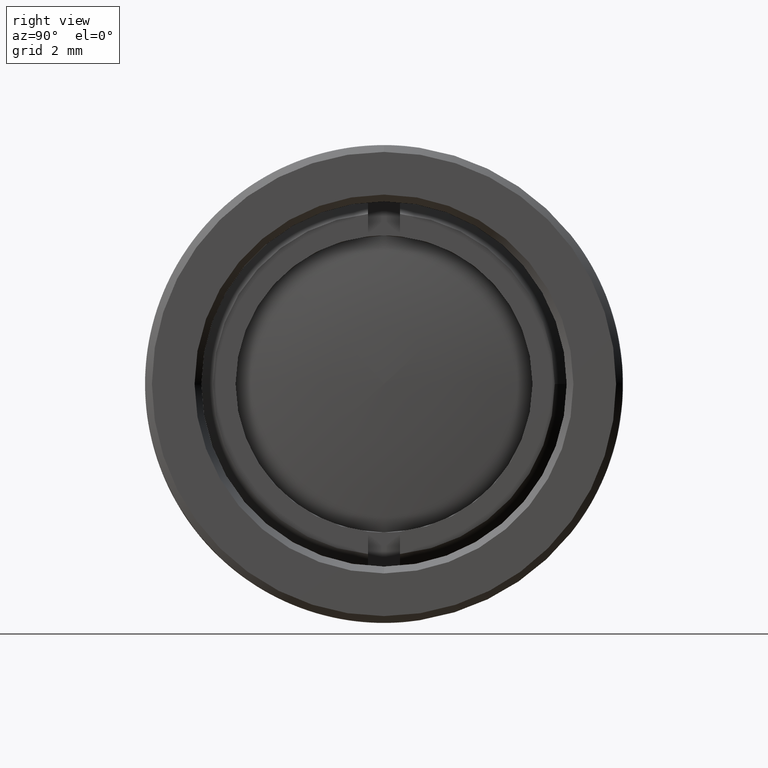
[diagram: clean part render]
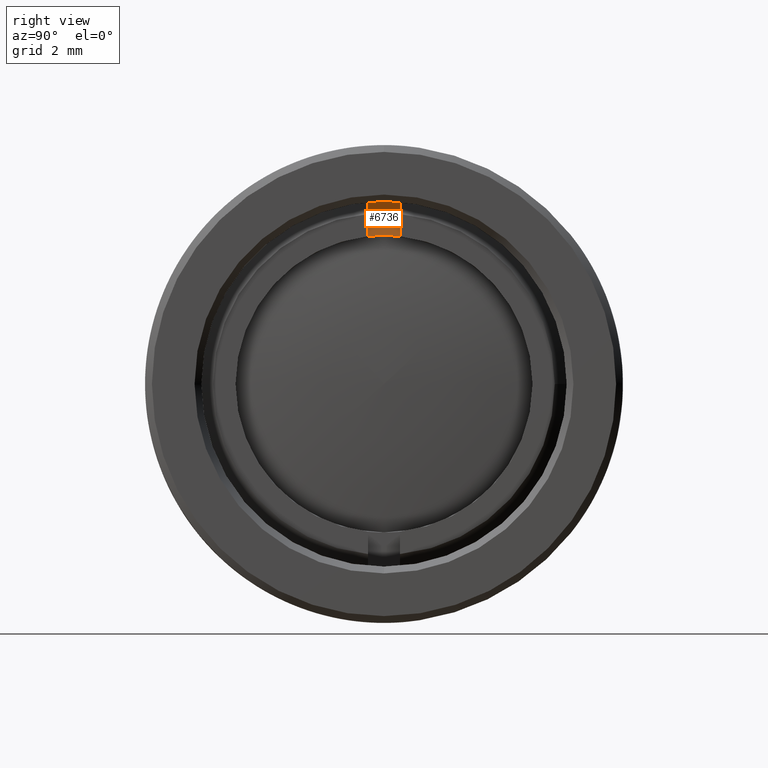
[diagram: same view with one face highlighted and labeled with its STEP entity id]
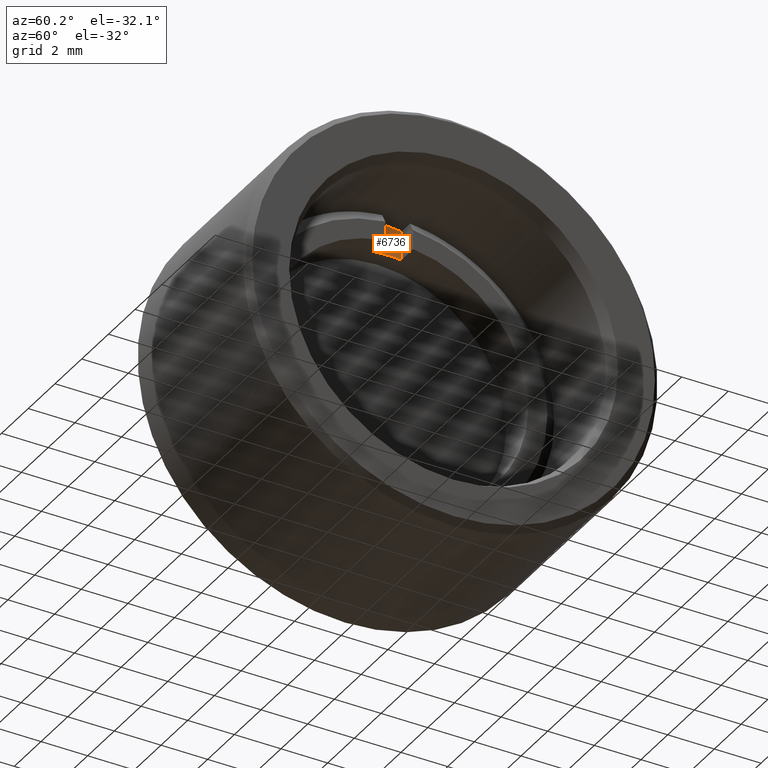
[diagram: same view with one face highlighted and labeled with its STEP entity id]
A machine part, right view. The second image highlights one B-rep face of the part: STEP entity #6736.
A second angle (auxiliary view) of the same face is appended — the face is thin or edge-on in the first view.
In plain terms, the highlighted planar face has unit normal (1, -0, -0).
Its self-contained STEP definition (entity closure, byte-faithful):
#934 = CARTESIAN_POINT ( 'NONE',  ( 5.458119933267195900, -0.5969000000000125300, 5.492159014449603300 ) ) ;
#2171 = DIRECTION ( 'NONE',  ( 1.860420394511408100E-017, -2.923928386435623900E-016, 1.000000000000000000 ) ) ;
#2228 = AXIS2_PLACEMENT_3D ( 'NONE', #3195, #11116, #4357 ) ;
#2250 = DIRECTION ( 'NONE',  ( 1.000000000000000000, -1.814574754612633700E-016, -1.860420394511413300E-017 ) ) ;
#2548 = VECTOR ( 'NONE', #2171, 1000.000000000000000 ) ;
#2699 = VECTOR ( 'NONE', #13021, 1000.000000000000000 ) ;
#2803 = ORIENTED_EDGE ( 'NONE', *, *, #4290, .T. ) ;
#2896 = ORIENTED_EDGE ( 'NONE', *, *, #10748, .T. ) ;
#3195 = CARTESIAN_POINT ( 'NONE',  ( 5.458119933267195900, -1.461940458157490900E-014, 2.431086578986632500E-015 ) ) ;
#3715 = ORIENTED_EDGE ( 'NONE', *, *, #12508, .T. ) ;
#4290 = EDGE_CURVE ( 'NONE', #8745, #13493, #5726, .T. ) ;
#4347 = CARTESIAN_POINT ( 'NONE',  ( 5.458119933267195900, -1.461940458157490900E-014, 2.431086578986632500E-015 ) ) ;
#4357 = DIRECTION ( 'NONE',  ( -1.570027582565668500E-016, -1.000000000000000000, -1.224646799147353000E-016 ) ) ;
#4898 = AXIS2_PLACEMENT_3D ( 'NONE', #4347, #12256, #5462 ) ;
#5085 = AXIS2_PLACEMENT_3D ( 'NONE', #9041, #2250, #10178 ) ;
#5227 = VERTEX_POINT ( 'NONE', #13120 ) ;
#5462 = DIRECTION ( 'NONE',  ( -1.814574754612633700E-016, -1.000000000000000000, -1.224646799147353000E-016 ) ) ;
#5726 = LINE ( 'NONE', #6198, #2699 ) ;
#6198 = CARTESIAN_POINT ( 'NONE',  ( 5.458119933267195900, -0.5969000000000154200, 6.768230244310551300 ) ) ;
#6736 = ADVANCED_FACE ( 'NONE', ( #14433 ), #11107, .T. ) ;
#7406 = CARTESIAN_POINT ( 'NONE',  ( 5.458119933267195900, -0.5969000000000154200, 6.768230244310551300 ) ) ;
#8102 = EDGE_CURVE ( 'NONE', #8389, #8745, #13694, .T. ) ;
#8389 = VERTEX_POINT ( 'NONE', #14298 ) ;
#8745 = VERTEX_POINT ( 'NONE', #7406 ) ;
#9041 = CARTESIAN_POINT ( 'NONE',  ( 5.458119933267195900, -1.461940458157490900E-014, 2.431086578986632500E-015 ) ) ;
#9165 = ORIENTED_EDGE ( 'NONE', *, *, #8102, .T. ) ;
#10030 = CIRCLE ( 'NONE', #2228, 5.524499999999999700 ) ;
#10178 = DIRECTION ( 'NONE',  ( -1.276564483020683500E-016, -1.000000000000000000, -1.224646799147352700E-016 ) ) ;
#10748 = EDGE_CURVE ( 'NONE', #13493, #5227, #10030, .T. ) ;
#11107 = PLANE ( 'NONE',  #4898 ) ;
#11116 = DIRECTION ( 'NONE',  ( -1.000000000000000000, 1.814574754612633700E-016, 1.860420394511413300E-017 ) ) ;
#11237 = CARTESIAN_POINT ( 'NONE',  ( 5.458119933267195900, 0.5968999999999844400, 6.768230244310551300 ) ) ;
#11245 = EDGE_LOOP ( 'NONE', ( #9165, #2803, #2896, #3715 ) ) ;
#11594 = LINE ( 'NONE', #11237, #2548 ) ;
#12256 = DIRECTION ( 'NONE',  ( 1.000000000000000000, -1.814574754612633700E-016, -1.860420394511413300E-017 ) ) ;
#12508 = EDGE_CURVE ( 'NONE', #5227, #8389, #11594, .T. ) ;
#13021 = DIRECTION ( 'NONE',  ( -1.860420394511414200E-017, -4.746347881409169500E-017, -1.000000000000000000 ) ) ;
#13120 = CARTESIAN_POINT ( 'NONE',  ( 5.458119933267195900, 0.5968999999999848900, 5.492159014449602400 ) ) ;
#13493 = VERTEX_POINT ( 'NONE', #934 ) ;
#13694 = CIRCLE ( 'NONE', #5085, 6.794500000000002000 ) ;
#14298 = CARTESIAN_POINT ( 'NONE',  ( 5.458119933267195900, 0.5968999999999844400, 6.768230244310551300 ) ) ;
#14433 = FACE_OUTER_BOUND ( 'NONE', #11245, .T. ) ;